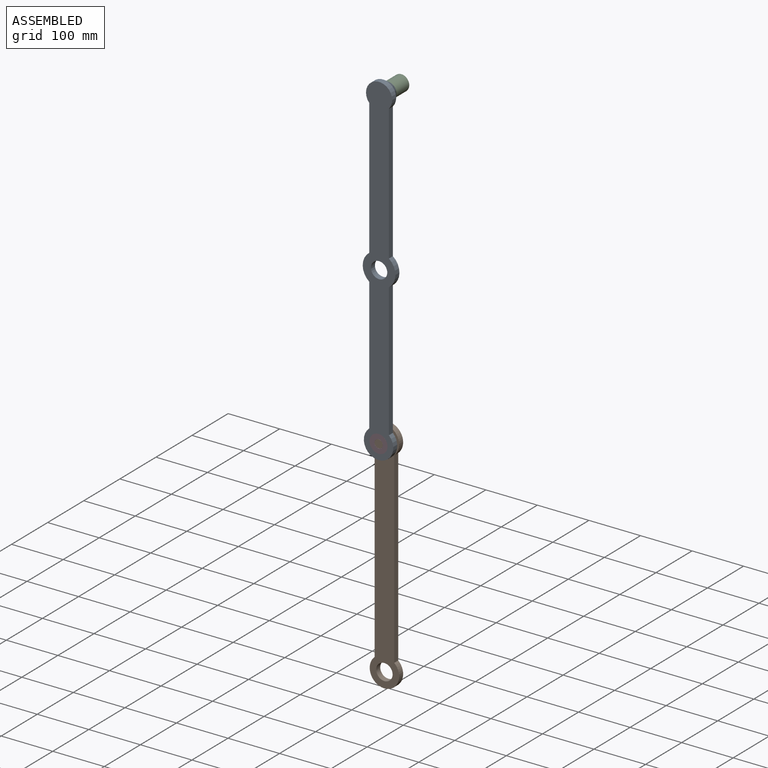
[diagram: assembled view]
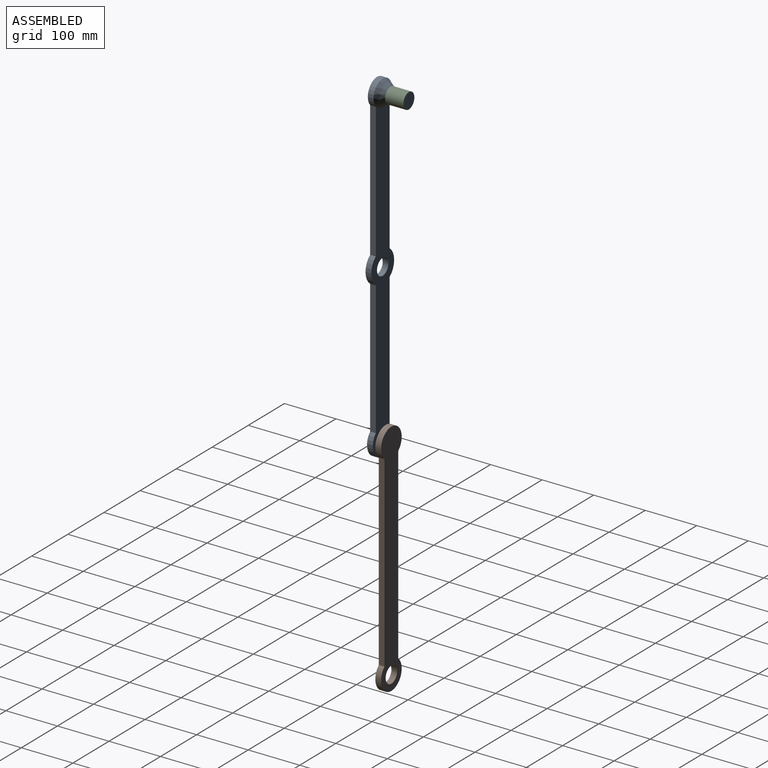
[diagram: assembled view, second angle]
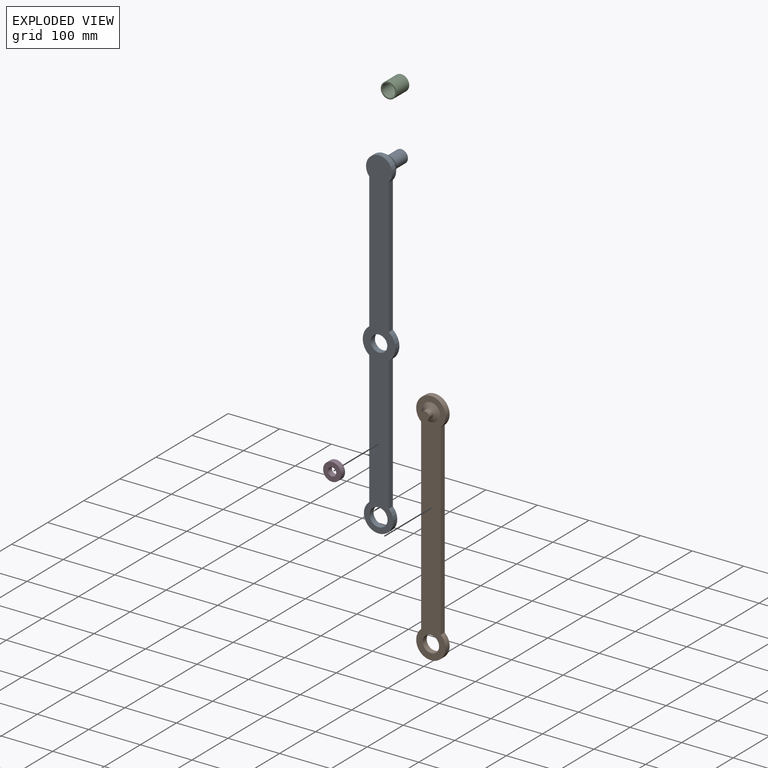
[diagram: exploded view]
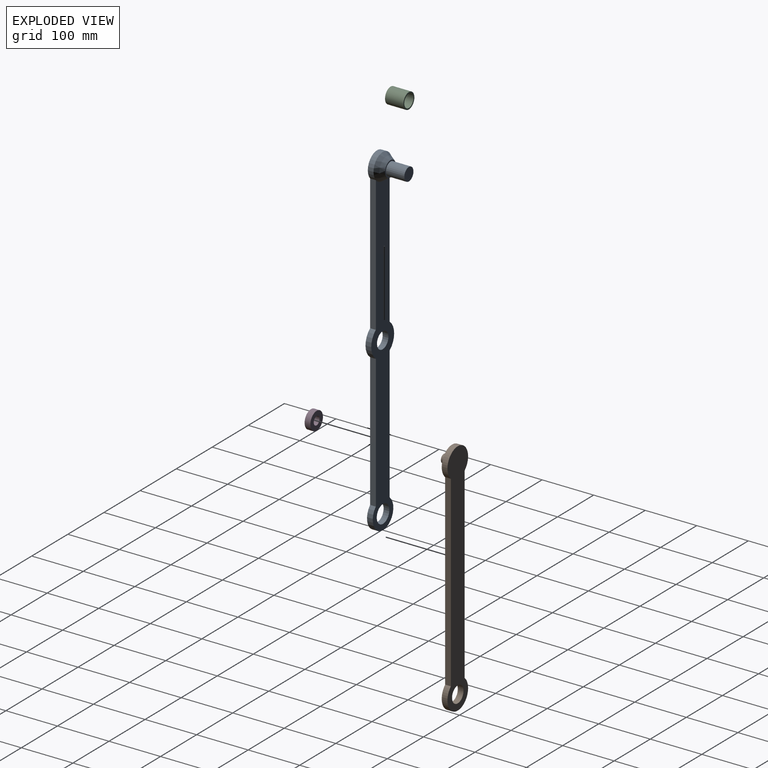
[diagram: exploded view, second angle]
ASSEMBLY  parts=4 mates=3
PART A: 16 faces, bbox 63.5x61.9x663.6 mm
  f0: plane 262.6x11.11mm, normal (1,0,0), area 2918.1mm2, adj f2,f9,f10,f11
  f1: plane 259x11.11mm, normal (1,0,0), area 2878.2mm2, adj f7,f9,f10,f11
  f2: cylinder r=25.4mm len=50.8mm, axis (0,1,0), area 1294.7mm2, adj f0,f3,f9,f15
  f3: plane 262.6x11.11mm, normal (-1,0,0), area 2918.1mm2, adj f2,f4,f9,f10
  f4: cylinder r=31.75mm len=50.8mm, axis (0,1,0), area 654.3mm2, adj f3,f5,f9,f10
  f5: plane 257.25x11.11mm, normal (-1,0,0), area 2858.7mm2, adj f4,f7,f9,f10
  f6: cylinder r=17.46mm len=34.93mm, axis (0,1,0), area 1219.3mm2, adj f9,f10
  f7: cylinder r=28.57mm len=57.15mm, axis (0,1,0), area 1531.1mm2, adj f1,f5,f9,f10
  f8: cylinder r=15.88mm len=31.75mm, axis (0,1,0), area 1108.4mm2, adj f9,f10
  f9: plane 663.56x63.5mm, normal (0,-1,0), area 25101.4mm2, adj f0,f1,f2,f3,f4,f5,f6,f7
  f10: plane 621.36x63.5mm, normal (0,1,0), area 23074.6mm2, adj f0,f1,f3,f4,f5,f6,f7,f8
  f11: cylinder r=31.75mm len=50.8mm, axis (0,1,0), area 654.3mm2, adj f0,f1,f9,f10
  f12: plane 30.48x30.48mm, normal (0,1,0), area 223mm2, adj f14,f15
  f13: plane 25.4x25.4mm, normal (0,1,0), area 506.7mm2, adj f14
  f14: cylinder r=12.7mm len=35.61mm, axis (0,-1,0), area 2841.6mm2, adj f12,f13
  f15: cone r=25.4mm half-angle=33.8deg, axis (0,-1,0), area 2333.1mm2, adj f2,f10,f12
PART B: 10 faces, bbox 57.2x27.3x463.6 mm
  f0: plane 363.8x11.11mm, normal (-1,0,0), area 4042.8mm2, adj f1,f4,f5,f6
  f1: cylinder r=28.57mm len=57.15mm, axis (0,1,0), area 1531.7mm2, adj f0,f2,f5,f6
  f2: plane 363.8x11.11mm, normal (1,0,0), area 4042.8mm2, adj f1,f4,f5,f6
  f3: cylinder r=15.88mm len=31.75mm, axis (0,1,0), area 1108.4mm2, adj f5,f6
  f4: cylinder r=28.57mm len=57.15mm, axis (0,1,0), area 1531.7mm2, adj f0,f2,f5,f6
  f5: plane 463.55x57.15mm, normal (0,-1,0), area 17819.4mm2, adj f0,f1,f2,f3,f4
  f6: plane 463.55x57.15mm, normal (0,1,0), area 16861.4mm2, adj f0,f1,f2,f3,f4,f9
  f7: plane 15.88x15.88mm, normal (0,1,0), area 197.9mm2, adj f8
  f8: cylinder r=7.94mm len=15.88mm, axis (0,-1,0), area 554.2mm2, adj f7,f9
  f9: cone r=17.46mm half-angle=61.9deg, axis (0,-1,0), area 861.4mm2, adj f6,f8
PART C: 4 faces, bbox 30.5x35.6x30.5 mm
  f0: cylinder r=12.7mm len=35.61mm, axis (0,1,0), area 2841.6mm2, adj f2,f3
  f1: cylinder r=15.24mm len=35.61mm, axis (0,1,0), area 3409.9mm2, adj f2,f3
  f2: plane 30.48x30.48mm, normal (0,-1,0), area 223mm2, adj f0,f1
  f3: plane 30.48x30.48mm, normal (0,1,0), area 223mm2, adj f0,f1
PART D: 4 faces, bbox 34.9x11.1x34.9 mm
  f0: cylinder r=8.06mm len=16.13mm, axis (0,1,0), area 563.1mm2, adj f2,f3
  f1: cylinder r=17.46mm len=34.93mm, axis (0,1,0), area 1219.3mm2, adj f2,f3
  f2: plane 34.93x34.93mm, normal (0,-1,0), area 753.7mm2, adj f0,f1
  f3: plane 34.93x34.93mm, normal (0,1,0), area 753.7mm2, adj f0,f1
PLACE A t=(-2.17,-37.19,4.23)mm
PLACE B rot(axis=(0,0,-1),180deg) t=(15.91,-32.11,-605.35)mm
PLACE C t=(16.88,13.61,4.23)mm
PLACE D t=(15.91,-37.19,-605.35)mm
MATE revolute D.f1 <-> A.f6  axis (0,-1,0) through (15.91,-48.3,-605.35)mm
MATE revolute A.f14 <-> C.f0  axis (0,1,0) through (16.88,13.61,4.23)mm
MATE revolute B.f8 <-> D.f0  axis (0,-1,0) through (15.91,-48.3,-605.35)mm
